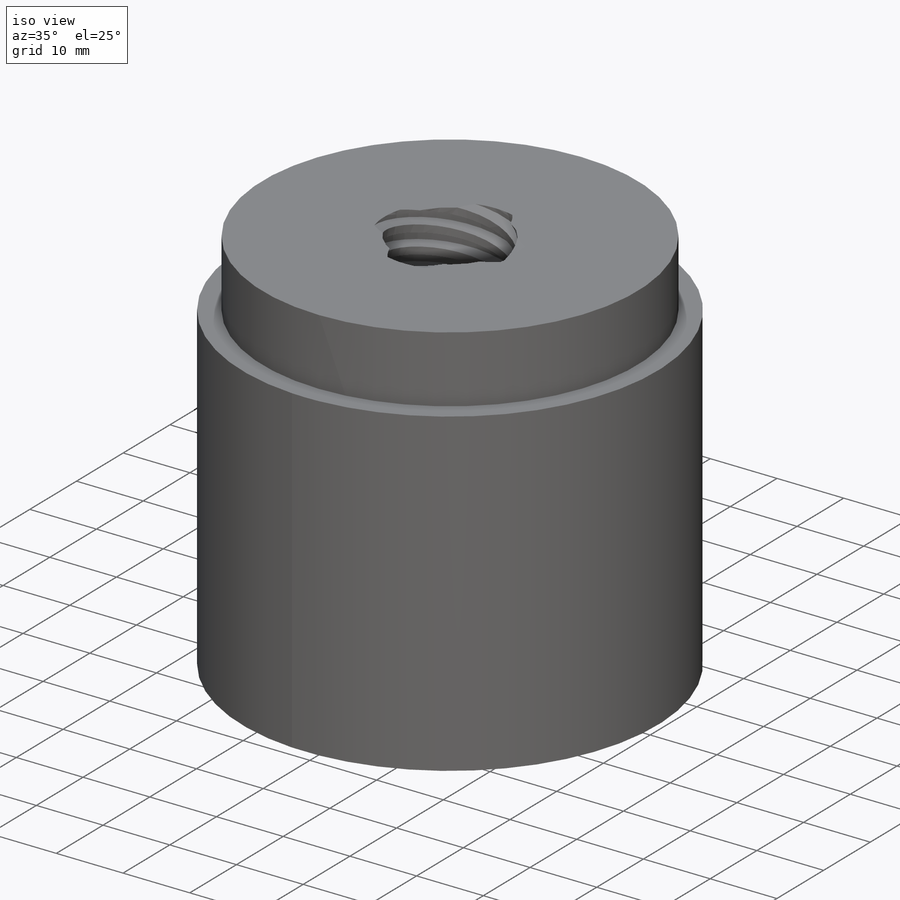
[diagram: iso view]
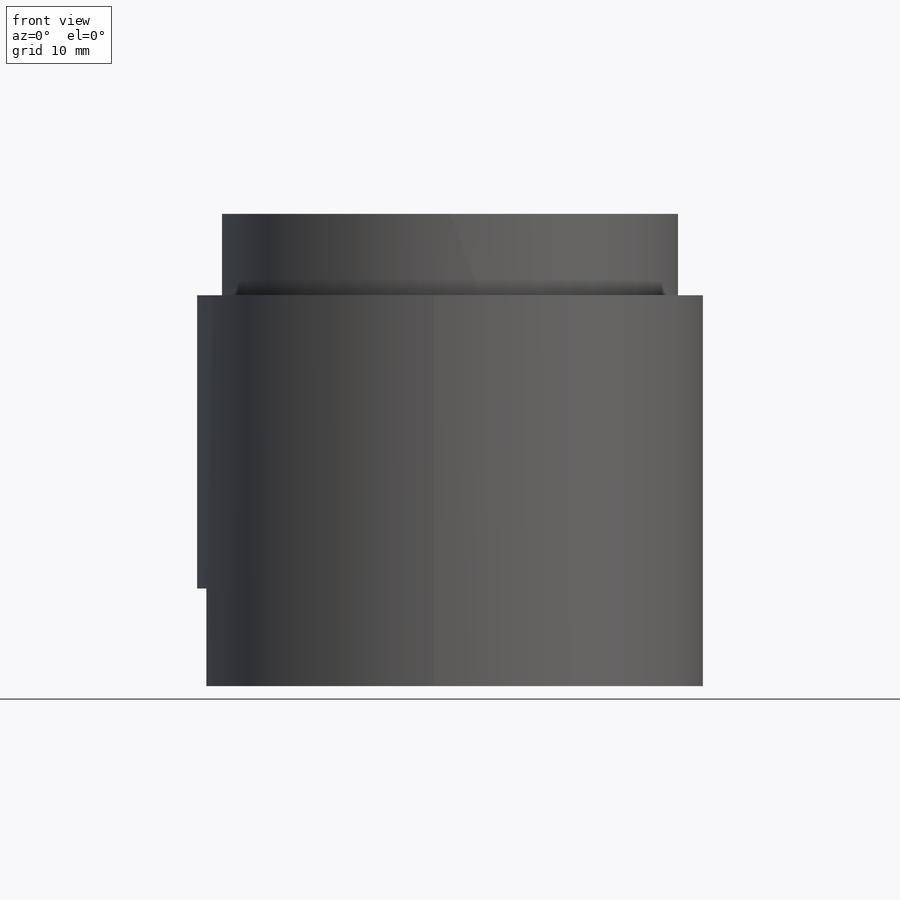
[diagram: front view]
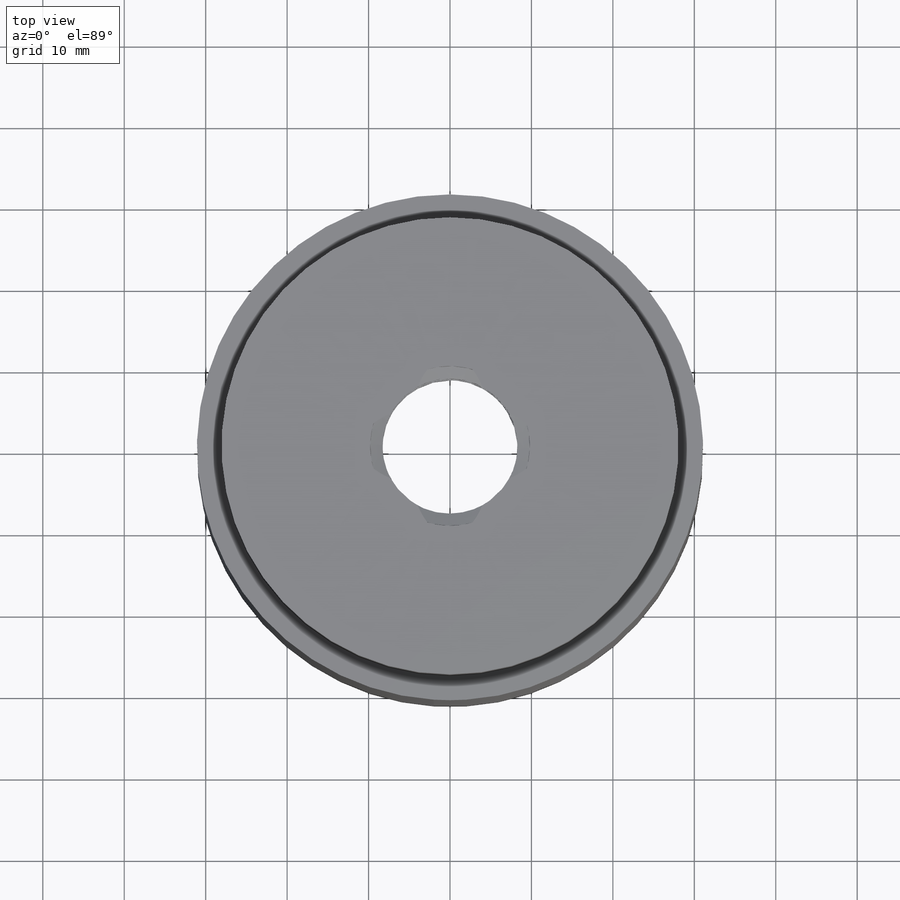
[diagram: top view]
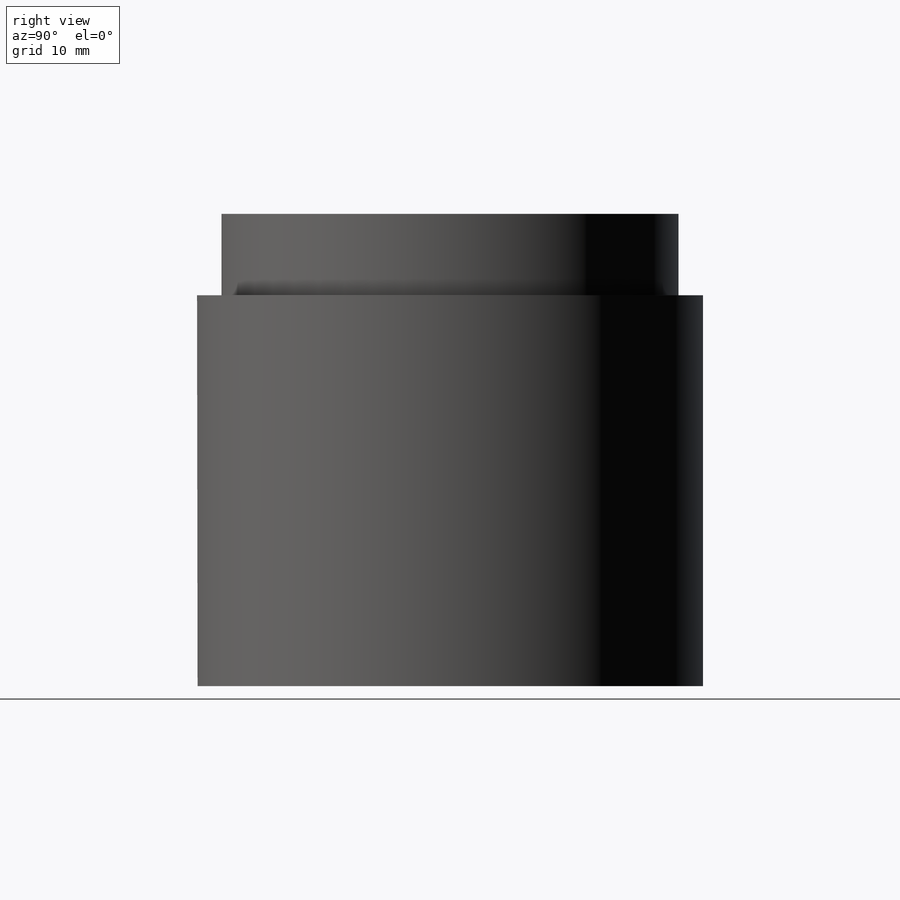
[diagram: right view]
SOLIDWORKS PART (.sldprt)
format: sldprt  version: not decoded by parser v0  size: 494,592 bytes
history: native  units: mm
features: sketch x11, cut_extrude x6, extrude x3, material x1, plane x1, helix x1, sweep x1, pattern_circular x1, chamfer x1 (+12 scaffold rows collapsed)
feature tree (38):
  scaffold x12  (default folders/planes/origin — collapsed)
  material  "Material <not specified>"
  sketch  "Sketch1"  dims[c1.D3=62.12mm c1.D1=~29.731026mm c1.D2=~31.880256mm c2.D1=42.5mm c2.D2=42.5mm]
  extrude  "Boss-Extrude1"  Depth=40mm
  sketch  "Sketch2"  dims[D1=5.0mm]
  extrude  "Boss-Extrude2"  Depth=5mm
  sketch  "Sketch18"  dims[D1=50.0mm]
  extrude  "Boss-Extrude3"  Depth=13mm
  sketch  "Sketch3"  dims[D1=24.0mm]
  cut_extrude  "Cut-Extrude1"  Depth=2mm
  sketch  "Sketch4"  dims[D1=16.6mm]
  cut_extrude  "Cut-Extrude2"  [1 undecoded]
  sketch  "Sketch6"  dims[c1.D1=~16.74003mm c1.D2=~9.103634mm c2.D1=13.0mm c2.D2=17.0mm c2.D3=21.175mm]
  cut_extrude  "Cut-Extrude4"  Depth=12mm
  plane  "Plane1"
  sketch  "Sketch27"  dims[D1=15.8mm]
  helix  "Helix/Spiral1"  Pitch=20mm
  sketch  "Sketch28"  dims[c1.D1=1.5mm c1.D2=1.5mm c1.D3=~0.128307mm c2.D3=30.0deg]
  sweep  "Cut-Sweep1"
  pattern_circular  "CirPattern1"  Count=4 Angle=360deg
  sketch  "Sketch29"  dims[D1=3.0mm]
  cut_extrude  "Cut-Extrude8"  Depth=10mm
  chamfer  "Chamfer1"  Distance=3mm Angle=45deg
  sketch  "Sketch30"  dims[D1=22.5mm]
  cut_extrude  "Cut-Extrude9"  [1 undecoded]
  sketch  "Sketch31"
  cut_extrude  "Cut-Extrude10"  Depth=4mm
decode coverage: 20 of 24 modeling features carry decoded parameters
note: ~ marks probable driven/reference dimensions
note: 2 parameter values undecoded
note: suppression state not decoded; provenance and decode notes live in map.json
